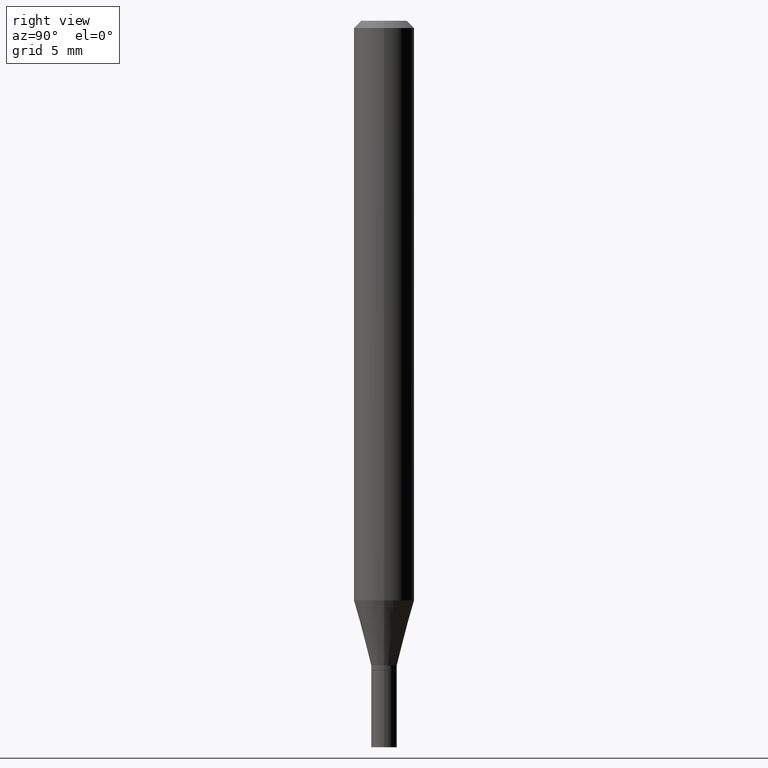
[diagram: clean part render]
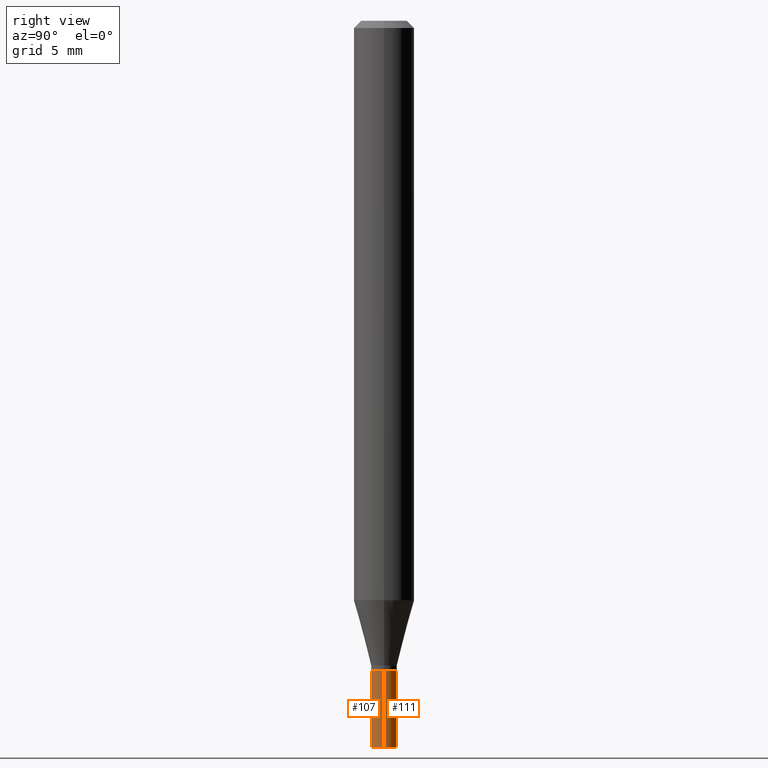
[diagram: same view with one multi-face feature highlighted, each face labeled with its STEP entity id]
A machine part, right view. The highlighted faces form ONE feature: a constant-radius fillet chain: 2 tangent blend faces with common blend radius 0.6731 mm. The faces share edges in the B-rep.
Their STEP definitions:
[1] entity #107 (Cylinder):
#20 = DIRECTION ( 'NONE',  ( 1.000000000000000000, -6.982962677686266711E-15, 4.876176775795935793E-29 ) ) ;
#41 = VERTEX_POINT ( 'NONE', #298 ) ;
#47 = CYLINDRICAL_SURFACE ( 'NONE', #433, 0.02649999999999999925 ) ;
#59 = CARTESIAN_POINT ( 'NONE',  ( -0.02649999999999999925, 1.882938249764265439E-16, -1.303517798917549926E-30 ) ) ;
#65 = DIRECTION ( 'NONE',  ( -2.445468806185136597E-29, 3.491481338843145583E-15, 1.000000000000000000 ) ) ;
#69 = CARTESIAN_POINT ( 'NONE',  ( 3.279373669094269136E-29, -4.682076475388659531E-15, -1.341000000000000192 ) ) ;
#100 = DIRECTION ( 'NONE',  ( -2.445468806185136877E-29, 3.491481338843145188E-15, 1.000000000000000000 ) ) ;
#103 = VECTOR ( 'NONE', #144, 39.37007874015748143 ) ;
#107 = ADVANCED_FACE ( 'NONE', ( #457 ), #47, .T. ) ;
#108 = VERTEX_POINT ( 'NONE', #305 ) ;
#125 = EDGE_CURVE ( 'NONE', #349, #108, #311, .T. ) ;
#144 = DIRECTION ( 'NONE',  ( -2.445468806185136877E-29, 3.491481338843145188E-15, 1.000000000000000000 ) ) ;
#145 = ORIENTED_EDGE ( 'NONE', *, *, #125, .F. ) ;
#155 = EDGE_CURVE ( 'NONE', #264, #108, #178, .T. ) ;
#174 = CIRCLE ( 'NONE', #434, 0.02649999999999999925 ) ;
#178 = LINE ( 'NONE', #285, #103 ) ;
#189 = ORIENTED_EDGE ( 'NONE', *, *, #445, .T. ) ;
#199 = LINE ( 'NONE', #59, #230 ) ;
#205 = DIRECTION ( 'NONE',  ( -2.445468806185136597E-29, 3.491481338843145583E-15, 1.000000000000000000 ) ) ;
#230 = VECTOR ( 'NONE', #100, 39.37007874015748143 ) ;
#239 = CARTESIAN_POINT ( 'NONE',  ( -0.02649999999999999925, -4.771355416850261743E-15, -1.341000000000000192 ) ) ;
#264 = VERTEX_POINT ( 'NONE', #358 ) ;
#280 = DIRECTION ( 'NONE',  ( -2.445468806185136597E-29, 3.491481338843145583E-15, 1.000000000000000000 ) ) ;
#285 = CARTESIAN_POINT ( 'NONE',  ( 0.02649999999999999925, -1.850485109586860590E-16, 1.292186845585922957E-30 ) ) ;
#298 = CARTESIAN_POINT ( 'NONE',  ( -0.02649999999999999925, -4.771355416850261743E-15, -1.500000000000000222 ) ) ;
#305 = CARTESIAN_POINT ( 'NONE',  ( 0.02649999999999999925, -4.867124986347346010E-15, -1.341000000000000192 ) ) ;
#311 = CIRCLE ( 'NONE', #395, 0.02649999999999999925 ) ;
#326 = EDGE_LOOP ( 'NONE', ( #402, #189, #436, #145 ) ) ;
#336 = CARTESIAN_POINT ( 'NONE',  ( 0.000000000000000000, 0.000000000000000000, 0.000000000000000000 ) ) ;
#344 = EDGE_CURVE ( 'NONE', #41, #349, #199, .T. ) ;
#349 = VERTEX_POINT ( 'NONE', #239 ) ;
#358 = CARTESIAN_POINT ( 'NONE',  ( 0.02649999999999999925, -5.422270519223404655E-15, -1.500000000000000222 ) ) ;
#382 = CARTESIAN_POINT ( 'NONE',  ( 3.668203209277704895E-29, -5.237222008264718177E-15, -1.500000000000000222 ) ) ;
#395 = AXIS2_PLACEMENT_3D ( 'NONE', #69, #65, #424 ) ;
#402 = ORIENTED_EDGE ( 'NONE', *, *, #344, .F. ) ;
#423 = DIRECTION ( 'NONE',  ( 1.000000000000000000, -6.982962677686277755E-15, 0.000000000000000000 ) ) ;
#424 = DIRECTION ( 'NONE',  ( 1.000000000000000000, -6.982962677686277755E-15, 0.000000000000000000 ) ) ;
#433 = AXIS2_PLACEMENT_3D ( 'NONE', #336, #205, #20 ) ;
#434 = AXIS2_PLACEMENT_3D ( 'NONE', #382, #280, #423 ) ;
#436 = ORIENTED_EDGE ( 'NONE', *, *, #155, .T. ) ;
#445 = EDGE_CURVE ( 'NONE', #41, #264, #174, .T. ) ;
#457 = FACE_OUTER_BOUND ( 'NONE', #326, .T. ) ;
[2] entity #111 (Cylinder):
#12 = CARTESIAN_POINT ( 'NONE',  ( 0.000000000000000000, 0.000000000000000000, 0.000000000000000000 ) ) ;
#36 = DIRECTION ( 'NONE',  ( -2.445468806185136597E-29, 3.491481338843145583E-15, 1.000000000000000000 ) ) ;
#41 = VERTEX_POINT ( 'NONE', #298 ) ;
#45 = CYLINDRICAL_SURFACE ( 'NONE', #243, 0.02649999999999999925 ) ;
#59 = CARTESIAN_POINT ( 'NONE',  ( -0.02649999999999999925, 1.882938249764265439E-16, -1.303517798917549926E-30 ) ) ;
#77 = AXIS2_PLACEMENT_3D ( 'NONE', #237, #170, #454 ) ;
#87 = EDGE_CURVE ( 'NONE', #108, #349, #450, .T. ) ;
#100 = DIRECTION ( 'NONE',  ( -2.445468806185136877E-29, 3.491481338843145188E-15, 1.000000000000000000 ) ) ;
#103 = VECTOR ( 'NONE', #144, 39.37007874015748143 ) ;
#108 = VERTEX_POINT ( 'NONE', #305 ) ;
#109 = AXIS2_PLACEMENT_3D ( 'NONE', #256, #36, #183 ) ;
#111 = ADVANCED_FACE ( 'NONE', ( #369 ), #45, .T. ) ;
#112 = ORIENTED_EDGE ( 'NONE', *, *, #87, .F. ) ;
#144 = DIRECTION ( 'NONE',  ( -2.445468806185136877E-29, 3.491481338843145188E-15, 1.000000000000000000 ) ) ;
#146 = ORIENTED_EDGE ( 'NONE', *, *, #344, .T. ) ;
#155 = EDGE_CURVE ( 'NONE', #264, #108, #178, .T. ) ;
#162 = DIRECTION ( 'NONE',  ( 1.000000000000000000, -6.982962677686266711E-15, 4.876176775795935793E-29 ) ) ;
#163 = CIRCLE ( 'NONE', #109, 0.02649999999999999925 ) ;
#170 = DIRECTION ( 'NONE',  ( -2.445468806185136597E-29, 3.491481338843145583E-15, 1.000000000000000000 ) ) ;
#178 = LINE ( 'NONE', #285, #103 ) ;
#183 = DIRECTION ( 'NONE',  ( 1.000000000000000000, -6.982962677686277755E-15, 0.000000000000000000 ) ) ;
#190 = ORIENTED_EDGE ( 'NONE', *, *, #155, .F. ) ;
#192 = EDGE_CURVE ( 'NONE', #264, #41, #163, .T. ) ;
#199 = LINE ( 'NONE', #59, #230 ) ;
#230 = VECTOR ( 'NONE', #100, 39.37007874015748143 ) ;
#237 = CARTESIAN_POINT ( 'NONE',  ( 3.279373669094269136E-29, -4.682076475388659531E-15, -1.341000000000000192 ) ) ;
#239 = CARTESIAN_POINT ( 'NONE',  ( -0.02649999999999999925, -4.771355416850261743E-15, -1.341000000000000192 ) ) ;
#243 = AXIS2_PLACEMENT_3D ( 'NONE', #12, #448, #162 ) ;
#256 = CARTESIAN_POINT ( 'NONE',  ( 3.668203209277704895E-29, -5.237222008264718177E-15, -1.500000000000000222 ) ) ;
#264 = VERTEX_POINT ( 'NONE', #358 ) ;
#285 = CARTESIAN_POINT ( 'NONE',  ( 0.02649999999999999925, -1.850485109586860590E-16, 1.292186845585922957E-30 ) ) ;
#296 = EDGE_LOOP ( 'NONE', ( #351, #146, #112, #190 ) ) ;
#298 = CARTESIAN_POINT ( 'NONE',  ( -0.02649999999999999925, -4.771355416850261743E-15, -1.500000000000000222 ) ) ;
#305 = CARTESIAN_POINT ( 'NONE',  ( 0.02649999999999999925, -4.867124986347346010E-15, -1.341000000000000192 ) ) ;
#344 = EDGE_CURVE ( 'NONE', #41, #349, #199, .T. ) ;
#349 = VERTEX_POINT ( 'NONE', #239 ) ;
#351 = ORIENTED_EDGE ( 'NONE', *, *, #192, .T. ) ;
#358 = CARTESIAN_POINT ( 'NONE',  ( 0.02649999999999999925, -5.422270519223404655E-15, -1.500000000000000222 ) ) ;
#369 = FACE_OUTER_BOUND ( 'NONE', #296, .T. ) ;
#448 = DIRECTION ( 'NONE',  ( -2.445468806185136597E-29, 3.491481338843145583E-15, 1.000000000000000000 ) ) ;
#450 = CIRCLE ( 'NONE', #77, 0.02649999999999999925 ) ;
#454 = DIRECTION ( 'NONE',  ( 1.000000000000000000, -6.982962677686277755E-15, 0.000000000000000000 ) ) ;